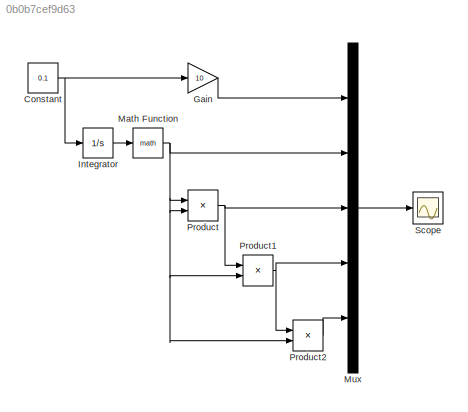
MODEL slx_0b0b7cef9d63
KIND model
CONFIG AbsTol = auto
CONFIG EnableMultiTasking = off
CONFIG FixedStep = auto
CONFIG MaxStep = auto
CONFIG MinStep = auto
CONFIG RelTol = 1e-3
CONFIG SampleTimeConstraint = Unconstrained
CONFIG SolverName = VariableStepAuto
CONFIG StartTime = 0.0
CONFIG StopTime = 10.0
BLOCK [Constant] Constant
  Value = 0.1
BLOCK [Gain] Gain
  Gain = 10
BLOCK [Integrator] Integrator
BLOCK [Math] Math Function
BLOCK [Mux] Mux
  DisplayOption = bar
  Inputs = 5
BLOCK [Product] Product
BLOCK [Product] Product1
BLOCK [Product] Product2
BLOCK [Scope] Scope
  Floating = off
  NumInputPorts = 1
  ScopeSpecificationString = Simulink.scopes.TimeScopeBlockCfg('CurrentConfiguration', extmgr.ConfigurationSet(extmgr.Configuration('Core','General UI',true),extmgr.Configuration('Core','Source UI',true),extmgr.Configuration('Sources','WiredSimulink',true),extmgr.Configuration('Visuals','Time Domain',true,'SerializedDisplays',{struct('MinYLimReal','-5.69977','MaxYLimReal','61.29792','YLabelReal','','MinYLimMag','0.00000','Max...<+1432ch>
NET Constant:1 -> Gain:1, Integrator:1
LINE Gain:1 -> Mux:1
LINE Integrator:1 -> Math Function:1
NET Math Function:1 -> Mux:2, Product1:2, Product2:2, Product:1, Product:2
LINE Mux:1 -> Scope:1
NET Product1:1 -> Mux:4, Product2:1
LINE Product2:1 -> Mux:5
NET Product:1 -> Mux:3, Product1:1
note: NET lines group one-source signal fan-out (src -> all destinations, sorted); 1:1 wires keep LINE
